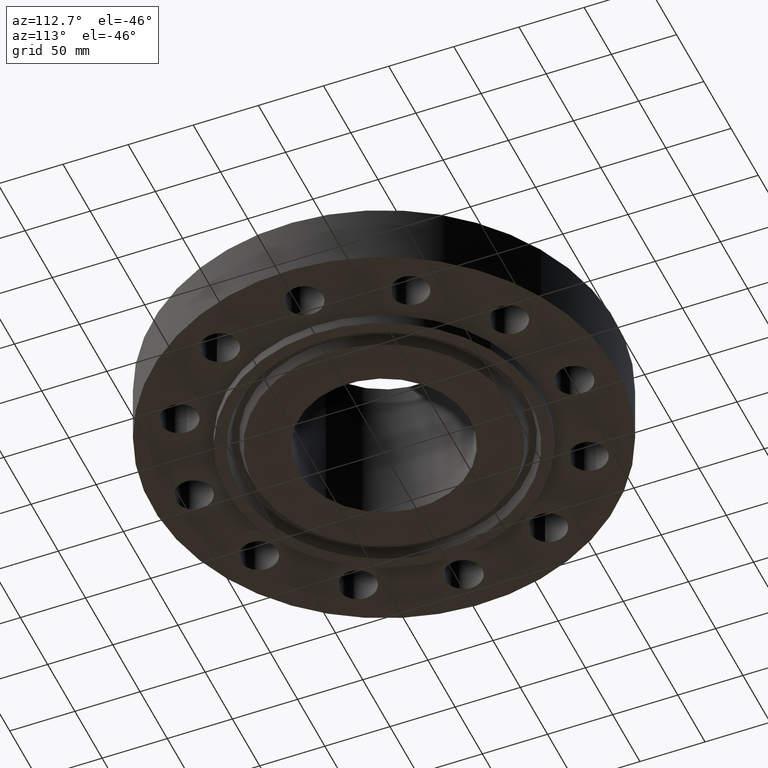
[diagram: clean part render]
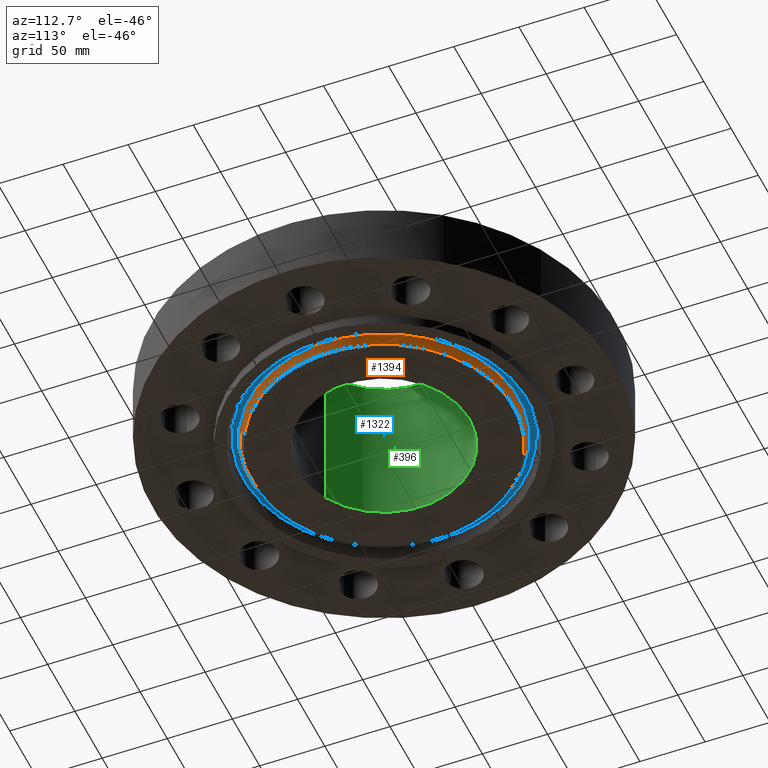
[diagram: same view with three faces highlighted in distinct colors, each labeled with its STEP entity id]
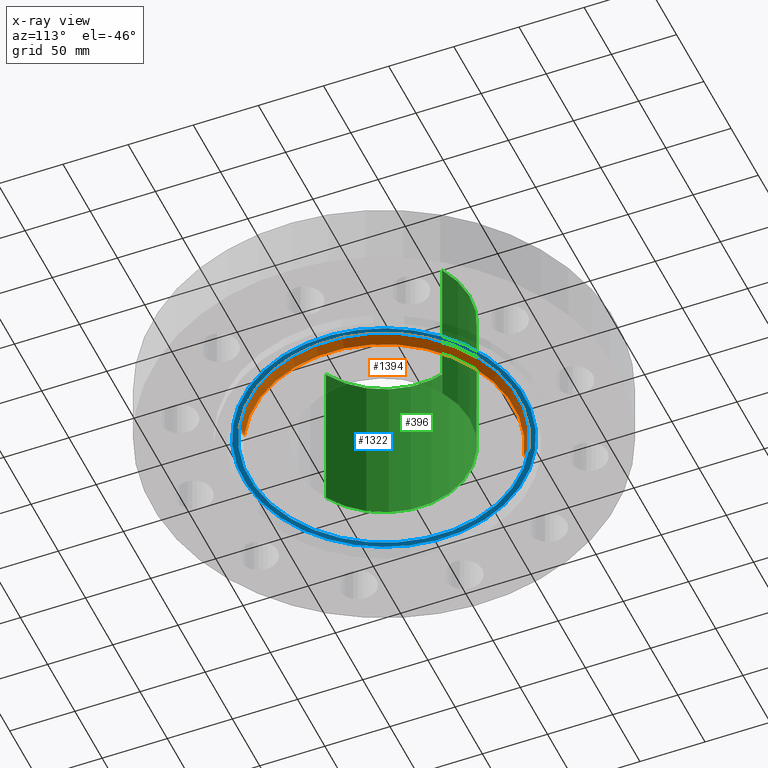
[diagram: x-ray of the same camera — body ghosted, the three highlighted faces saturated]
A machine part, auxiliary view with three faces highlighted in distinct colors.
The next image is the same camera in x-ray (body ghosted, the three faces saturated) — at least one of them is partly hidden behind the body in this view.
Their STEP definitions:

[orange] entity #1394 — the highlighted conical surface has half-angle 23 deg.
#1200=AXIS2_PLACEMENT_3D('Circle Axis2P3D',#1198,#1199,$) ;
#1344=AXIS2_PLACEMENT_3D('Circle Axis2P3D',#1342,#1343,$) ;
#1376=AXIS2_PLACEMENT_3D('Cone Axis2P3D',#1373,#1374,#1375) ;
#1198=CARTESIAN_POINT('Axis2P3D Location',(0.,0.,-0.313000000001)) ;
#1202=CARTESIAN_POINT('Vertex',(-1.88030696241,3.44187880775,-0.313000000001)) ;
#1204=CARTESIAN_POINT('Vertex',(1.88030696241,-3.44187880775,-0.313000000001)) ;
#1339=CARTESIAN_POINT('Vertex',(1.94016008601,-3.55143921559,-0.0188873350169)) ;
#1342=CARTESIAN_POINT('Axis2P3D Location',(0.,0.,-0.0188873350169)) ;
#1346=CARTESIAN_POINT('Vertex',(-1.94016008601,3.55143921559,-0.0188873350169)) ;
#1373=CARTESIAN_POINT('Axis2P3D Location',(0.,0.,-0.373000000001)) ;
#1378=CARTESIAN_POINT('Line Origine',(-1.91023352421,3.49665901167,-0.165943667509)) ;
#1383=CARTESIAN_POINT('Line Origine',(1.91023352421,-3.49665901167,-0.165943667509)) ;
#1199=DIRECTION('Axis2P3D Direction',(0.,0.,-0.0393700787402)) ;
#1343=DIRECTION('Axis2P3D Direction',(0.,0.,0.0393700787402)) ;
#1374=DIRECTION('Axis2P3D Direction',(0.,0.,0.0393700787402)) ;
#1375=DIRECTION('Axis2P3D XDirection',(-0.0188750212049,0.0345504945626,0.)) ;
#1379=DIRECTION('Vector Direction',(-0.00737505833565,0.0134999537303,0.0362403485611)) ;
#1384=DIRECTION('Vector Direction',(0.00737505833565,-0.0134999537303,0.0362403485611)) ;
#1380=VECTOR('Line Direction',#1379,0.0393700787402) ;
#1385=VECTOR('Line Direction',#1384,0.0393700787402) ;
#1389=ORIENTED_EDGE('',*,*,#1382,.F.) ;
#1390=ORIENTED_EDGE('',*,*,#1348,.F.) ;
#1391=ORIENTED_EDGE('',*,*,#1387,.T.) ;
#1392=ORIENTED_EDGE('',*,*,#1206,.F.) ;
#1394=ADVANCED_FACE('PartBody',(#1393),#1377,.T.) ;
#1201=CIRCLE('generated circle',#1200,3.92200000002) ;
#1345=CIRCLE('generated circle',#1344,4.04684341943) ;
#1377=CONICAL_SURFACE('Cone',#1376,3.89653151104,0.401425727959) ;
#1206=EDGE_CURVE('',#1203,#1205,#1201,.T.) ;
#1348=EDGE_CURVE('',#1340,#1347,#1345,.T.) ;
#1382=EDGE_CURVE('',#1347,#1203,#1381,.F.) ;
#1387=EDGE_CURVE('',#1340,#1205,#1386,.F.) ;
#1388=EDGE_LOOP('',(#1389,#1390,#1391,#1392)) ;
#1393=FACE_OUTER_BOUND('',#1388,.T.) ;
#1381=LINE('Line',#1378,#1380) ;
#1386=LINE('Line',#1383,#1385) ;
#1203=VERTEX_POINT('',#1202) ;
#1205=VERTEX_POINT('',#1204) ;
#1340=VERTEX_POINT('',#1339) ;
#1347=VERTEX_POINT('',#1346) ;

[blue] entity #1322 — the highlighted planar face has unit normal (0, 0, -1).
#484=AXIS2_PLACEMENT_3D('Plane Axis2P3D',#481,#482,#483) ;
#1244=AXIS2_PLACEMENT_3D('Circle Axis2P3D',#1242,#1243,$) ;
#1290=AXIS2_PLACEMENT_3D('Circle Axis2P3D',#1288,#1289,$) ;
#1306=AXIS2_PLACEMENT_3D('Circle Axis2P3D',#1304,#1305,$) ;
#1315=AXIS2_PLACEMENT_3D('Circle Axis2P3D',#1313,#1314,$) ;
#481=CARTESIAN_POINT('Axis2P3D Location',(0.,4.75000000002,0.)) ;
#1239=CARTESIAN_POINT('Vertex',(-2.03162369684,3.7188622322,-3.1907984566E-016)) ;
#1242=CARTESIAN_POINT('Axis2P3D Location',(0.,0.,-3.1907984566E-016)) ;
#1246=CARTESIAN_POINT('Vertex',(2.03162369684,-3.7188622322,-3.1907984566E-016)) ;
#1288=CARTESIAN_POINT('Axis2P3D Location',(0.,0.,-3.1907984566E-016)) ;
#1304=CARTESIAN_POINT('Axis2P3D Location',(0.,0.,0.)) ;
#1308=CARTESIAN_POINT('Vertex',(1.9538408056,-3.57648160483,1.92322098754E-016)) ;
#1310=CARTESIAN_POINT('Vertex',(-1.9538408056,3.57648160483,1.92322098754E-016)) ;
#1313=CARTESIAN_POINT('Axis2P3D Location',(0.,0.,0.)) ;
#482=DIRECTION('Axis2P3D Direction',(0.,0.,-0.0393700787402)) ;
#483=DIRECTION('Axis2P3D XDirection',(0.0393700787402,0.,0.)) ;
#1243=DIRECTION('Axis2P3D Direction',(0.,0.,0.0393700787402)) ;
#1289=DIRECTION('Axis2P3D Direction',(0.,0.,0.0393700787402)) ;
#1305=DIRECTION('Axis2P3D Direction',(0.,0.,-0.0393700787402)) ;
#1314=DIRECTION('Axis2P3D Direction',(0.,0.,-0.0393700787402)) ;
#1301=ORIENTED_EDGE('',*,*,#1248,.F.) ;
#1302=ORIENTED_EDGE('',*,*,#1292,.F.) ;
#1319=ORIENTED_EDGE('',*,*,#1312,.T.) ;
#1320=ORIENTED_EDGE('',*,*,#1317,.T.) ;
#1321=FACE_BOUND('',#1318,.T.) ;
#1322=ADVANCED_FACE('PartBody',(#1303,#1321),#485,.T.) ;
#1245=CIRCLE('generated circle',#1244,4.23762093015) ;
#1291=CIRCLE('generated circle',#1290,4.23762093015) ;
#1307=CIRCLE('generated circle',#1306,4.07537906989) ;
#1316=CIRCLE('generated circle',#1315,4.07537906989) ;
#1248=EDGE_CURVE('',#1240,#1247,#1245,.T.) ;
#1292=EDGE_CURVE('',#1247,#1240,#1291,.T.) ;
#1312=EDGE_CURVE('',#1309,#1311,#1307,.F.) ;
#1317=EDGE_CURVE('',#1311,#1309,#1316,.F.) ;
#1300=EDGE_LOOP('',(#1301,#1302)) ;
#1318=EDGE_LOOP('',(#1319,#1320)) ;
#1303=FACE_OUTER_BOUND('',#1300,.T.) ;
#485=PLANE('',#484) ;
#1240=VERTEX_POINT('',#1239) ;
#1247=VERTEX_POINT('',#1246) ;
#1309=VERTEX_POINT('',#1308) ;
#1311=VERTEX_POINT('',#1310) ;

[green] entity #396 — the highlighted cylindrical surface (partial cylindrical patch) has radius 65.8749 mm, axis along (0, 0, -1).
#343=AXIS2_PLACEMENT_3D('Cylinder Axis2P3D',#340,#341,#342) ;
#382=AXIS2_PLACEMENT_3D('Circle Axis2P3D',#380,#381,$) ;
#387=AXIS2_PLACEMENT_3D('Circle Axis2P3D',#385,#386,$) ;
#340=CARTESIAN_POINT('Axis2P3D Location',(0.,0.,2.15350000001)) ;
#349=CARTESIAN_POINT('Vertex',(1.24339013437,2.27601037427,4.62000000002)) ;
#351=CARTESIAN_POINT('Vertex',(-1.24339013437,-2.27601037427,4.62000000002)) ;
#354=CARTESIAN_POINT('Line Origine',(1.24339013437,2.27601037427,2.15350000001)) ;
#358=CARTESIAN_POINT('Vertex',(1.24339013437,2.27601037427,-0.313000000001)) ;
#365=CARTESIAN_POINT('Vertex',(-1.24339013437,-2.27601037427,-0.313000000001)) ;
#368=CARTESIAN_POINT('Line Origine',(-1.24339013437,-2.27601037427,2.15350000001)) ;
#380=CARTESIAN_POINT('Axis2P3D Location',(0.,0.,4.62000000002)) ;
#385=CARTESIAN_POINT('Axis2P3D Location',(0.,0.,-0.313000000001)) ;
#341=DIRECTION('Axis2P3D Direction',(0.,0.,-0.0393700787402)) ;
#342=DIRECTION('Axis2P3D XDirection',(-0.0188750212049,-0.0345504945626,0.)) ;
#355=DIRECTION('Vector Direction',(0.,0.,-0.0393700787402)) ;
#369=DIRECTION('Vector Direction',(0.,0.,-0.0393700787402)) ;
#381=DIRECTION('Axis2P3D Direction',(0.,0.,-0.0393700787402)) ;
#386=DIRECTION('Axis2P3D Direction',(0.,0.,-0.0393700787402)) ;
#356=VECTOR('Line Direction',#355,0.0393700787402) ;
#370=VECTOR('Line Direction',#369,0.0393700787402) ;
#391=ORIENTED_EDGE('',*,*,#384,.F.) ;
#392=ORIENTED_EDGE('',*,*,#372,.T.) ;
#393=ORIENTED_EDGE('',*,*,#389,.T.) ;
#394=ORIENTED_EDGE('',*,*,#360,.F.) ;
#396=ADVANCED_FACE('PartBody',(#395),#344,.F.) ;
#383=CIRCLE('generated circle',#382,2.59350000001) ;
#388=CIRCLE('generated circle',#387,2.59350000001) ;
#344=CYLINDRICAL_SURFACE('generated cylinder',#343,2.59350000001) ;
#360=EDGE_CURVE('',#350,#359,#357,.T.) ;
#372=EDGE_CURVE('',#352,#366,#371,.T.) ;
#384=EDGE_CURVE('',#352,#350,#383,.T.) ;
#389=EDGE_CURVE('',#366,#359,#388,.T.) ;
#390=EDGE_LOOP('',(#391,#392,#393,#394)) ;
#395=FACE_OUTER_BOUND('',#390,.T.) ;
#357=LINE('Line',#354,#356) ;
#371=LINE('Line',#368,#370) ;
#350=VERTEX_POINT('',#349) ;
#352=VERTEX_POINT('',#351) ;
#359=VERTEX_POINT('',#358) ;
#366=VERTEX_POINT('',#365) ;